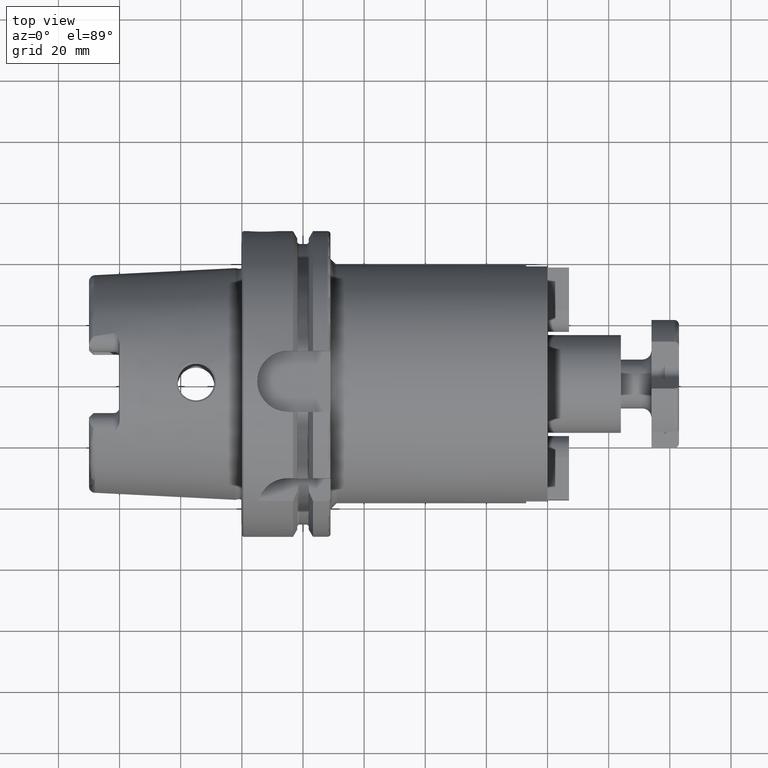
[diagram: clean part render]
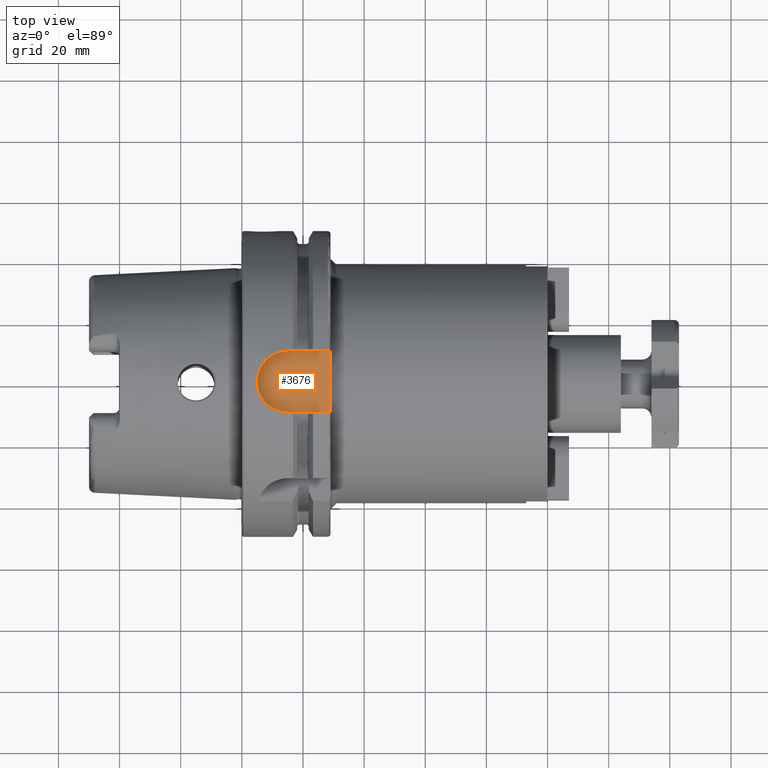
[diagram: same view with one face highlighted and labeled with its STEP entity id]
A machine part, top view. The second image highlights one B-rep face of the part: STEP entity #3676.
In plain terms, the highlighted planar face has unit normal (0, 0, 1).
Its self-contained STEP definition (entity closure, byte-faithful):
#748=PLANE('',#4121);
#930=FACE_OUTER_BOUND('',#1126,.T.);
#1126=EDGE_LOOP('',(#3111,#3112,#3113,#3114));
#1267=LINE('',#5664,#1459);
#1340=LINE('',#6917,#1532);
#1343=LINE('',#6924,#1535);
#1459=VECTOR('',#4539,10.);
#1532=VECTOR('',#4880,10.);
#1535=VECTOR('',#4889,10.);
#1711=CIRCLE('',#4119,10.);
#1888=VERTEX_POINT('',#5661);
#1889=VERTEX_POINT('',#5663);
#2039=VERTEX_POINT('',#6916);
#2040=VERTEX_POINT('',#6920);
#2215=EDGE_CURVE('',#1888,#1889,#1267,.T.);
#2426=EDGE_CURVE('',#2039,#1889,#1340,.T.);
#2428=EDGE_CURVE('',#2040,#2039,#1711,.T.);
#2430=EDGE_CURVE('',#1888,#2040,#1343,.T.);
#3111=ORIENTED_EDGE('',*,*,#2430,.T.);
#3112=ORIENTED_EDGE('',*,*,#2428,.T.);
#3113=ORIENTED_EDGE('',*,*,#2426,.T.);
#3114=ORIENTED_EDGE('',*,*,#2215,.F.);
#3676=ADVANCED_FACE('',(#930),#748,.T.);
#4119=AXIS2_PLACEMENT_3D('',#6921,#4884,#4885);
#4121=AXIS2_PLACEMENT_3D('',#6925,#4890,#4891);
#4539=DIRECTION('',(0.,-1.,0.));
#4880=DIRECTION('',(1.,7.93016446160826E-17,0.));
#4884=DIRECTION('center_axis',(0.,0.,1.));
#4885=DIRECTION('ref_axis',(0.,1.,0.));
#4889=DIRECTION('',(-1.,0.,0.));
#4890=DIRECTION('center_axis',(0.,0.,1.));
#4891=DIRECTION('ref_axis',(1.,0.,0.));
#5661=CARTESIAN_POINT('',(29.,10.,44.));
#5663=CARTESIAN_POINT('',(29.,-10.,44.));
#5664=CARTESIAN_POINT('',(29.,0.,44.));
#6916=CARTESIAN_POINT('',(15.,-10.,44.));
#6917=CARTESIAN_POINT('',(15.,-10.,44.));
#6920=CARTESIAN_POINT('',(15.,10.,44.));
#6921=CARTESIAN_POINT('Origin',(15.,0.,44.));
#6924=CARTESIAN_POINT('',(29.,10.,44.));
#6925=CARTESIAN_POINT('Origin',(17.,0.,44.));